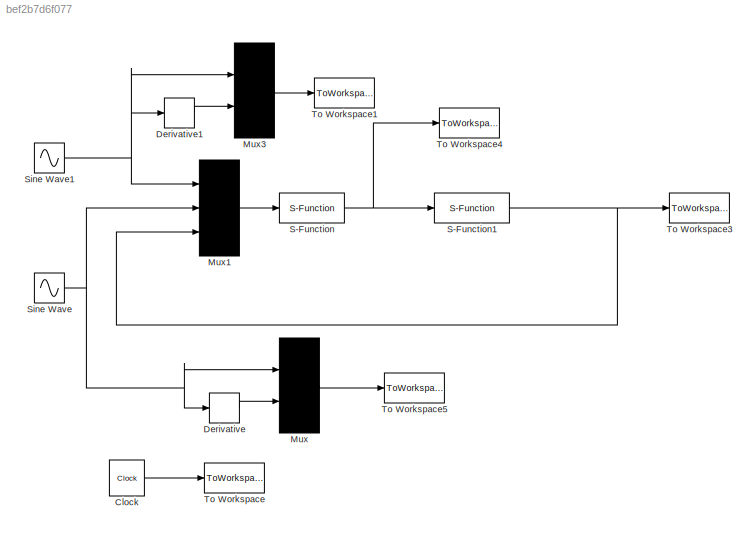
MODEL slx_bef2b7d6f077
KIND model
CONFIG AbsTol = auto
CONFIG FixedStep = auto
CONFIG MaxStep = auto
CONFIG MinStep = auto
CONFIG RelTol = 1e-3
CONFIG SampleTimeConstraint = Unconstrained
CONFIG Solver = ode45
CONFIG SolverMode = Auto
CONFIG SolverName = ode45
CONFIG StartTime = 0.0
CONFIG StopTime = 10
BLOCK [Clock] Clock
  DisplayTime = on
BLOCK [Derivative] Derivative
BLOCK [Derivative] Derivative1
BLOCK [Mux] Mux
  Inputs = 2
  Ports = [2, 1]
BLOCK [Mux] Mux1
  Inputs = 3
  Ports = [3, 1]
BLOCK [Mux] Mux3
  Inputs = 2
  Ports = [2, 1]
BLOCK [S-Function] S-Function
  FunctionName = chap9_4ctrl
  Ports = [1, 1]
BLOCK [S-Function] S-Function1
  FunctionName = chap9_4plant
  Ports = [1, 1]
BLOCK [Sin] Sine Wave
  Amplitude = 0.3
  Ports = [0, 1]
  SampleTime = 0
BLOCK [Sin] Sine Wave1
  Amplitude = 0.3
  Ports = [0, 1]
  SampleTime = 0
BLOCK [ToWorkspace] To Workspace
  FixptAsFi = on
  MaxDataPoints = inf
  Ports = [1]
  SampleTime = -1
  Save2DSignal = 3-D array (concatenate along third dimension)
  VariableName = t
BLOCK [ToWorkspace] To Workspace1
  FixptAsFi = on
  MaxDataPoints = inf
  Ports = [1]
  SampleTime = -1
  Save2DSignal = 3-D array (concatenate along third dimension)
  VariableName = yd1
BLOCK [ToWorkspace] To Workspace3
  FixptAsFi = on
  MaxDataPoints = inf
  Ports = [1]
  SampleTime = -1
  Save2DSignal = 3-D array (concatenate along third dimension)
  VariableName = y
BLOCK [ToWorkspace] To Workspace4
  FixptAsFi = on
  MaxDataPoints = inf
  Ports = [1]
  SampleTime = -1
  Save2DSignal = 3-D array (concatenate along third dimension)
  VariableName = u
BLOCK [ToWorkspace] To Workspace5
  FixptAsFi = on
  MaxDataPoints = inf
  Ports = [1]
  SampleTime = -1
  Save2DSignal = 3-D array (concatenate along third dimension)
  VariableName = yd2
LINE Clock:1 -> To Workspace:1
LINE Derivative1:1 -> Mux3:2
LINE Derivative:1 -> Mux:2
LINE Mux1:1 -> S-Function:1
LINE Mux3:1 -> To Workspace1:1
LINE Mux:1 -> To Workspace5:1
NET S-Function1:1 -> Mux1:3, To Workspace3:1
NET S-Function:1 -> S-Function1:1, To Workspace4:1
NET Sine Wave1:1 -> Derivative1:1, Mux1:1, Mux3:1
NET Sine Wave:1 -> Derivative:1, Mux1:2, Mux:1
note: NET lines group one-source signal fan-out (src -> all destinations, sorted); 1:1 wires keep LINE
